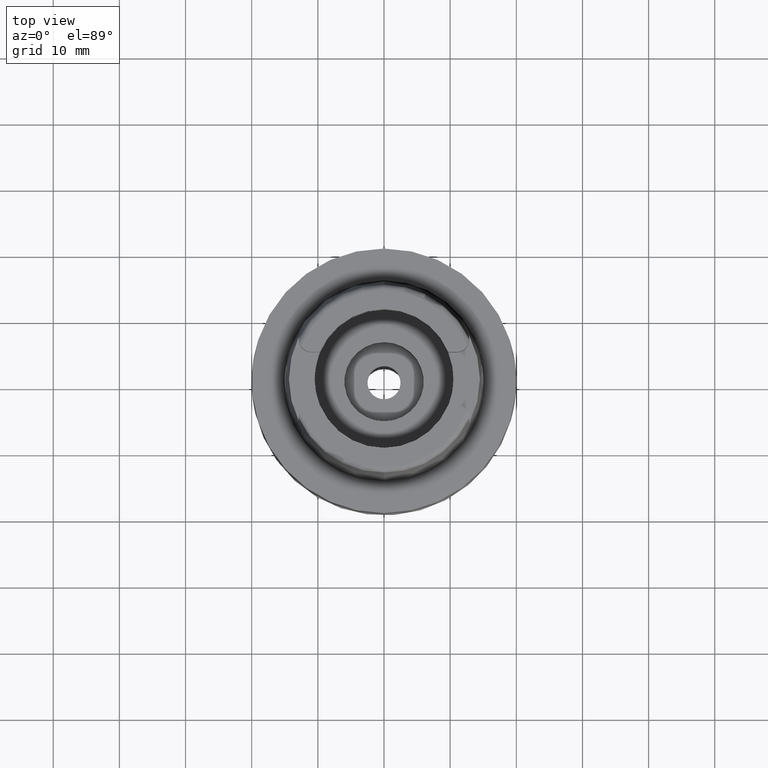
[diagram: clean part render]
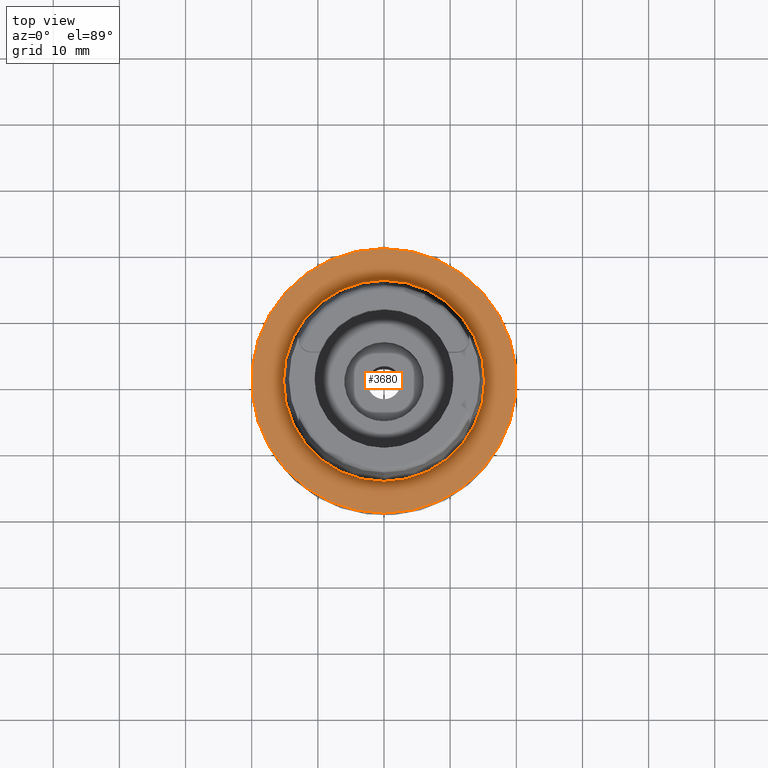
[diagram: same view with one face highlighted and labeled with its STEP entity id]
A machine part, top view. The second image highlights one B-rep face of the part: STEP entity #3680.
In plain terms, the highlighted planar face has unit normal (0, 0, -1).
Its self-contained STEP definition (entity closure, byte-faithful):
#93 = FACE_OUTER_BOUND ( 'NONE', #4051, .T. ) ;
#126 = CARTESIAN_POINT ( 'NONE',  ( 0.0000000000000000000, 1.224646799146999965E-14, 0.0000000000000000000 ) ) ;
#248 = EDGE_CURVE ( 'NONE', #5111, #3823, #788, .T. ) ;
#274 = AXIS2_PLACEMENT_3D ( 'NONE', #3462, #3489, #2196 ) ;
#359 = DIRECTION ( 'NONE',  ( 0.0000000000000000000, 0.0000000000000000000, 1.000000000000000000 ) ) ;
#570 = VERTEX_POINT ( 'NONE', #1928 ) ;
#581 = DIRECTION ( 'NONE',  ( 0.0000000000000000000, -1.000000000000000000, 0.0000000000000000000 ) ) ;
#700 = DIRECTION ( 'NONE',  ( 0.0000000000000000000, 1.000000000000000000, 0.0000000000000000000 ) ) ;
#765 = CARTESIAN_POINT ( 'NONE',  ( 0.0000000000000000000, -20.00000000000000000, 4.263256414560999963E-14 ) ) ;
#788 = CIRCLE ( 'NONE', #4209, 15.20000663301000010 ) ;
#929 = EDGE_LOOP ( 'NONE', ( #2215, #2385 ) ) ;
#1044 = ORIENTED_EDGE ( 'NONE', *, *, #5256, .F. ) ;
#1615 = EDGE_CURVE ( 'NONE', #3823, #5111, #4743, .T. ) ;
#1928 = CARTESIAN_POINT ( 'NONE',  ( 0.0000000000000000000, 20.00000000000000000, 2.842170943039999687E-14 ) ) ;
#1985 = AXIS2_PLACEMENT_3D ( 'NONE', #126, #3695, #2085 ) ;
#2085 = DIRECTION ( 'NONE',  ( 0.0000000000000000000, -1.000000000000000000, 0.0000000000000000000 ) ) ;
#2120 = AXIS2_PLACEMENT_3D ( 'NONE', #2436, #2867, #4501 ) ;
#2196 = DIRECTION ( 'NONE',  ( 0.0000000000000000000, 1.000000000000000000, 0.0000000000000000000 ) ) ;
#2215 = ORIENTED_EDGE ( 'NONE', *, *, #1615, .F. ) ;
#2218 = CARTESIAN_POINT ( 'NONE',  ( 0.0000000000000000000, 1.342457523729000028E-14, 5.684341886080998387E-14 ) ) ;
#2385 = ORIENTED_EDGE ( 'NONE', *, *, #248, .F. ) ;
#2436 = CARTESIAN_POINT ( 'NONE',  ( 0.0000000000000000000, 1.525297588337999954E-14, 4.263256414560999963E-14 ) ) ;
#2650 = DIRECTION ( 'NONE',  ( 0.0000000000000000000, 0.0000000000000000000, 1.000000000000000000 ) ) ;
#2867 = DIRECTION ( 'NONE',  ( 0.0000000000000000000, 0.0000000000000000000, -1.000000000000000000 ) ) ;
#3000 = FACE_BOUND ( 'NONE', #929, .T. ) ;
#3036 = AXIS2_PLACEMENT_3D ( 'NONE', #4010, #359, #700 ) ;
#3462 = CARTESIAN_POINT ( 'NONE',  ( 0.0000000000000000000, 1.525297588337999954E-14, 4.263256414560999963E-14 ) ) ;
#3489 = DIRECTION ( 'NONE',  ( 0.0000000000000000000, 0.0000000000000000000, -1.000000000000000000 ) ) ;
#3680 = ADVANCED_FACE ( 'NONE', ( #93, #3000 ), #4948, .F. ) ;
#3695 = DIRECTION ( 'NONE',  ( 0.0000000000000000000, 0.0000000000000000000, -1.000000000000000000 ) ) ;
#3823 = VERTEX_POINT ( 'NONE', #3945 ) ;
#3945 = CARTESIAN_POINT ( 'NONE',  ( 0.0000000000000000000, 15.20000663301000010, 5.684341886080998387E-14 ) ) ;
#4010 = CARTESIAN_POINT ( 'NONE',  ( 0.0000000000000000000, 1.342457523729000028E-14, 5.684341886080998387E-14 ) ) ;
#4051 = EDGE_LOOP ( 'NONE', ( #1044, #5087 ) ) ;
#4102 = CIRCLE ( 'NONE', #2120, 20.00000000000000000 ) ;
#4191 = CIRCLE ( 'NONE', #274, 20.00000000000000000 ) ;
#4209 = AXIS2_PLACEMENT_3D ( 'NONE', #2218, #2650, #581 ) ;
#4501 = DIRECTION ( 'NONE',  ( 0.0000000000000000000, -1.000000000000000000, 0.0000000000000000000 ) ) ;
#4552 = CARTESIAN_POINT ( 'NONE',  ( 0.0000000000000000000, -15.20000663301000010, 1.527666881883999820E-13 ) ) ;
#4743 = CIRCLE ( 'NONE', #3036, 15.20000663301000010 ) ;
#4840 = VERTEX_POINT ( 'NONE', #765 ) ;
#4948 = PLANE ( 'NONE',  #1985 ) ;
#5035 = EDGE_CURVE ( 'NONE', #4840, #570, #4102, .T. ) ;
#5087 = ORIENTED_EDGE ( 'NONE', *, *, #5035, .F. ) ;
#5111 = VERTEX_POINT ( 'NONE', #4552 ) ;
#5256 = EDGE_CURVE ( 'NONE', #570, #4840, #4191, .T. ) ;